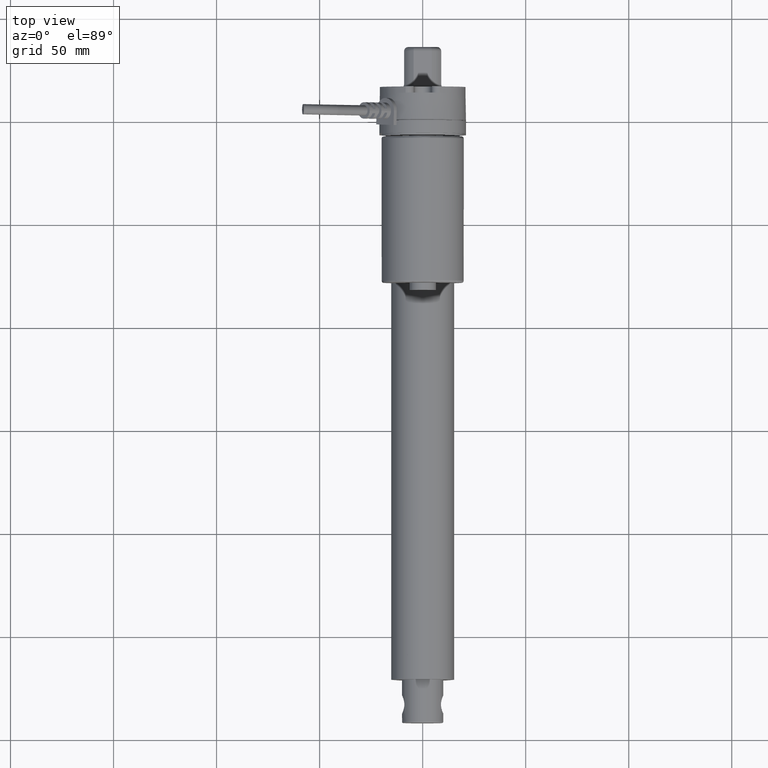
[diagram: clean part render]
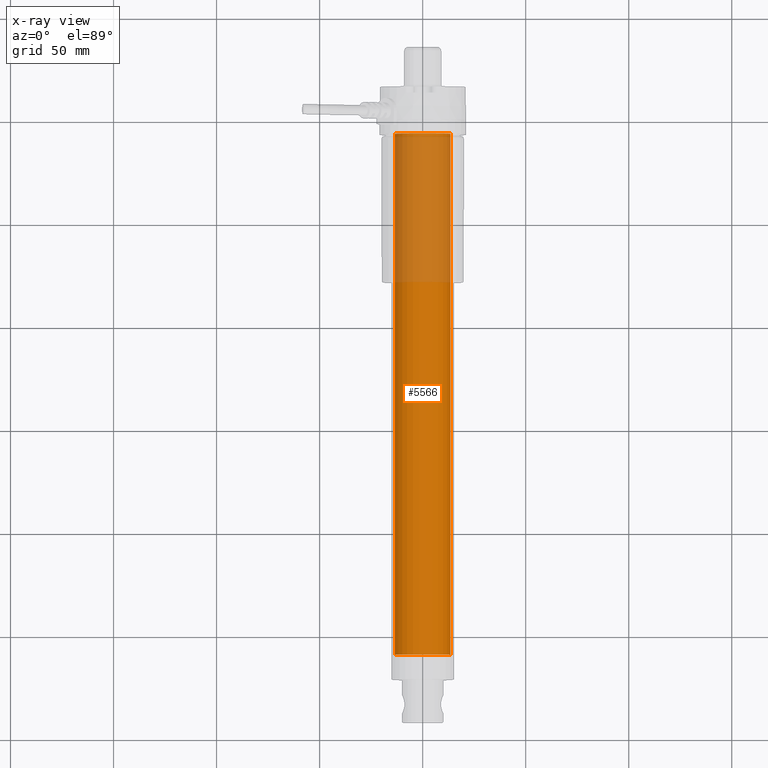
[diagram: x-ray — body ghosted, one internal face saturated and labeled with its STEP entity id]
A machine part, top view, then the same camera in x-ray: the body is ghosted and one INTERNAL B-rep face — a face not visible from any outside direction — is saturated and labeled: STEP entity #5566.
In plain terms, the highlighted cylindrical surface (edge-blend (fillet) strip) has radius 13.45 mm, axis along (0, -1, 0).
Its self-contained STEP definition (entity closure, byte-faithful):
#515=LINE('',#8799,#972);
#516=LINE('',#8803,#973);
#972=VECTOR('',#7130,1000.);
#973=VECTOR('',#7133,1000.);
#1837=ORIENTED_EDGE('',*,*,#3172,.T.);
#1838=ORIENTED_EDGE('',*,*,#3173,.T.);
#1839=ORIENTED_EDGE('',*,*,#3174,.T.);
#1840=ORIENTED_EDGE('',*,*,#3175,.F.);
#3172=EDGE_CURVE('',#3891,#3892,#4349,.T.);
#3173=EDGE_CURVE('',#3892,#3893,#515,.T.);
#3174=EDGE_CURVE('',#3893,#3894,#4350,.T.);
#3175=EDGE_CURVE('',#3891,#3894,#516,.T.);
#3891=VERTEX_POINT('',#8797);
#3892=VERTEX_POINT('',#8798);
#3893=VERTEX_POINT('',#8800);
#3894=VERTEX_POINT('',#8802);
#4349=CIRCLE('',#6095,13.45);
#4350=CIRCLE('',#6096,13.4499999999984);
#4660=EDGE_LOOP('',(#1837,#1838,#1839,#1840));
#5059=FACE_BOUND('',#4660,.T.);
#5373=CYLINDRICAL_SURFACE('',#6094,13.45);
#5566=ADVANCED_FACE('',(#5059),#5373,.F.);
#6094=AXIS2_PLACEMENT_3D('',#8795,#7126,#7127);
#6095=AXIS2_PLACEMENT_3D('',#8796,#7128,#7129);
#6096=AXIS2_PLACEMENT_3D('',#8801,#7131,#7132);
#7126=DIRECTION('',(1.,0.,0.));
#7127=DIRECTION('',(0.,0.,-1.));
#7128=DIRECTION('',(-1.,0.,0.));
#7129=DIRECTION('',(0.,7.105427357601E-15,-1.));
#7130=DIRECTION('',(1.,0.,0.));
#7131=DIRECTION('',(1.,0.,0.));
#7132=DIRECTION('',(0.,0.,-1.));
#7133=DIRECTION('',(1.,0.,0.));
#8795=CARTESIAN_POINT('',(0.,0.,0.));
#8796=CARTESIAN_POINT('',(0.,0.,0.));
#8797=CARTESIAN_POINT('',(0.,-2.79641224149807,13.1560852298688));
#8798=CARTESIAN_POINT('',(0.,-2.79641224149786,-13.1560852298678));
#8799=CARTESIAN_POINT('',(101.,-2.7964122414985,-13.1560852298676));
#8800=CARTESIAN_POINT('',(253.,-2.79641224149797,-13.1560852298683));
#8801=CARTESIAN_POINT('',(253.,0.,0.));
#8802=CARTESIAN_POINT('',(253.,-2.79641224149807,13.1560852298688));
#8803=CARTESIAN_POINT('',(101.,-2.79641224149893,13.1560852298697));